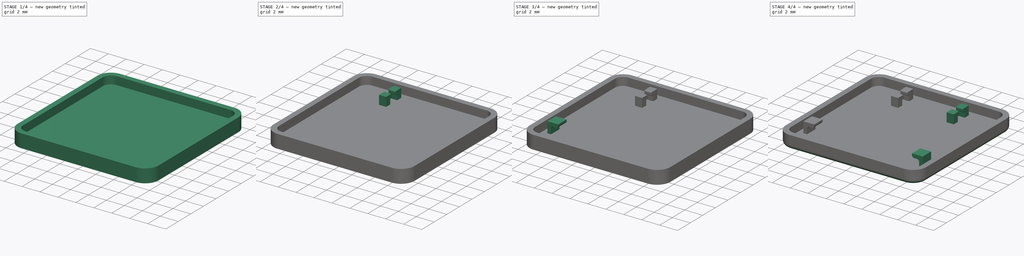
[diagram: build sequence overview — one tinted view per stage of 4, left to right]
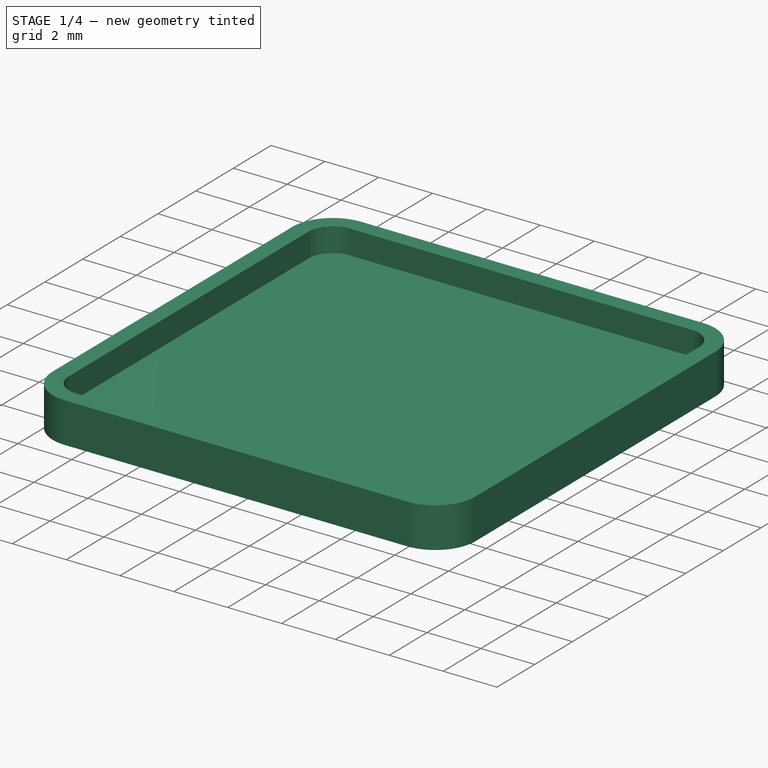
[diagram: stage 1 of 4 — iso view after this stage's code; geometry added in this stage tinted green]
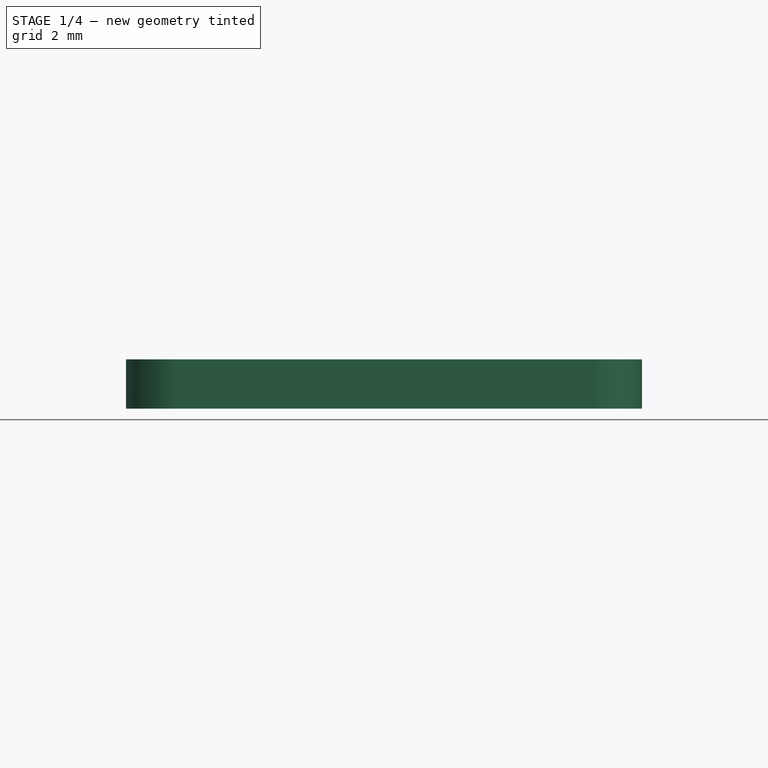
[diagram: stage 1 of 4 — front view after this stage's code; geometry added in this stage tinted green]
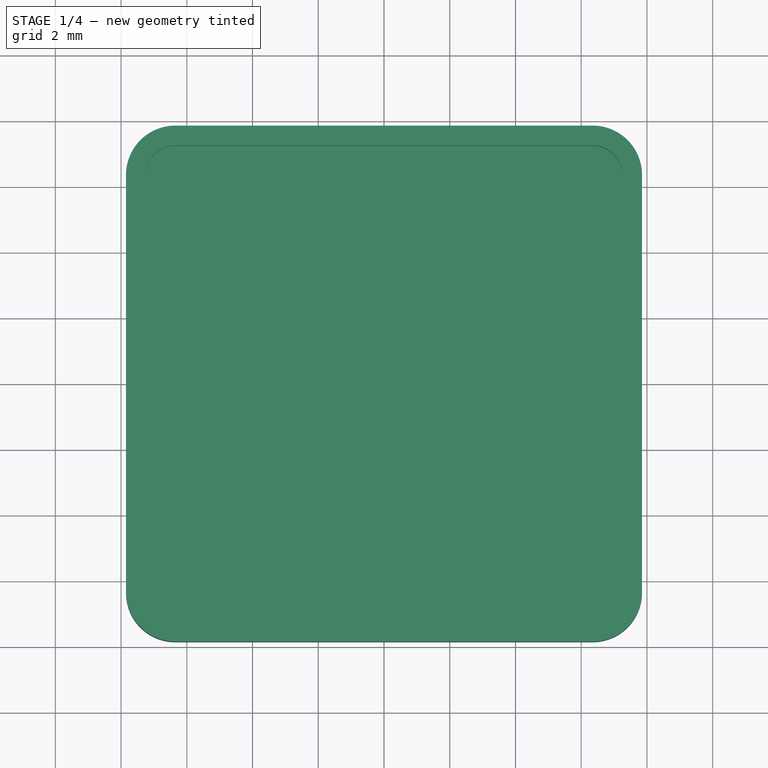
[diagram: stage 1 of 4 — top view after this stage's code; geometry added in this stage tinted green]
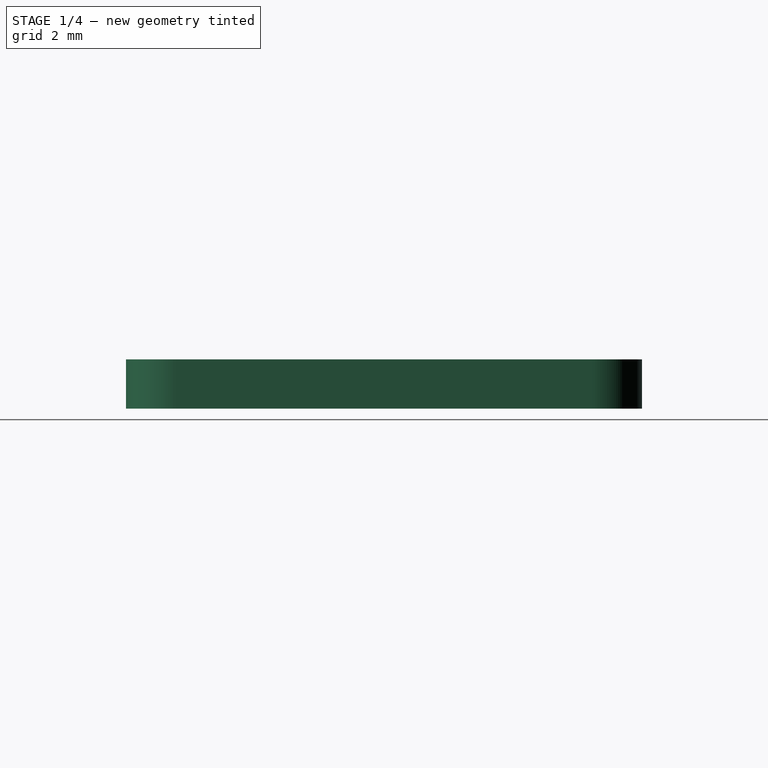
[diagram: stage 1 of 4 — right view after this stage's code; geometry added in this stage tinted green]
FCSTD DOCUMENT  (FreeCAD 0.21RUnknown)
Label: framework-laptop-keycap
License: All rights reserved
LicenseURL: https://en.wikipedia.org/wiki/All_rights_reserved
objects: Sketcher::SketchObject×5, PartDesign::Pad×4, PartDesign::Fillet×3, PartDesign::Thickness×1, PartDesign::Pocket×1, PartDesign::Mirrored×1, PartDesign::Body×1
note: 25 computed .brp shape members not serialized (recipe doc carries the construction recipe); baked Part::Feature solids carry a one-line shape summary decoded from their .brp

FEATURE [Sketcher::SketchObject] Sketch
  FullyConstrained = true
  MapMode = 5
  Support = -> [XY_Plane]
  sketch-geometry (10):
    g0: ArcOfCircle CenterX=-6.35 CenterY=6.35 CenterZ=0 NormalX=0 NormalY=0 NormalZ=1 AngleXU=0 Radius=1.5 StartAngle=1.5708 EndAngle=3.14159
    g1: LineSegment StartX=-6.35 StartY=7.85 StartZ=0 EndX=6.35 EndY=7.85 EndZ=0
    g2: ArcOfCircle CenterX=6.35 CenterY=6.35 CenterZ=0 NormalX=0 NormalY=0 NormalZ=1 AngleXU=0 Radius=1.5 StartAngle=3e-16 EndAngle=1.5708
    g3: LineSegment StartX=7.85 StartY=6.35 StartZ=0 EndX=7.85 EndY=-6.35 EndZ=0
    g4: ArcOfCircle CenterX=6.35 CenterY=-6.35 CenterZ=0 NormalX=0 NormalY=0 NormalZ=1 AngleXU=0 Radius=1.5 StartAngle=4.71239 EndAngle=6.28319
    g5: LineSegment StartX=6.35 StartY=-7.85 StartZ=0 EndX=-6.35 EndY=-7.85 EndZ=0
    g6: ArcOfCircle CenterX=-6.35 CenterY=-6.35 CenterZ=0 NormalX=0 NormalY=0 NormalZ=1 AngleXU=0 Radius=1.5 StartAngle=3.14159 EndAngle=4.71239
    g7: LineSegment StartX=-7.85 StartY=-6.35 StartZ=0 EndX=-7.85 EndY=6.35 EndZ=0
    g8: GeomPoint X=-7.85 Y=7.85 Z=0
    g9: GeomPoint X=7.85 Y=-7.85 Z=0
  constraints (23):
    c: Tangent(g0,g1) = 1.5708
    c: Tangent(g1,g2) = 1.5708
    c: Tangent(g2,g3) = 1.5708
    c: Tangent(g3,g4) = 1.5708
    c: Tangent(g4,g5) = 1.5708
    c: Tangent(g5,g6) = 1.5708
    c: Tangent(g6,g7) = 1.5708
    c: Tangent(g7,g0) = 1.5708
    c: Horizontal(g1)
    c: Horizontal(g5)
    c: Vertical(g3)
    c: Vertical(g7)
    c: Equal(g0,g2)
    c: Equal(g2,g4)
    c: Equal(g4,g6)
    c: PointOnObject(g8,g1)
    c: PointOnObject(g8,g7)
    c: PointOnObject(g9,g3)
    c: PointOnObject(g9,g5)
    c: Symmetric(g0,g3,g-1)
    c: DistanceX(g6,g3) = 15.7
    c: DistanceY(g4,g1) = 15.7
    c: Radius(g4) = 1.5
FEATURE [PartDesign::Pad] Pad
  Direction = (0,0,1)
  Length = 1.5
  Length2 = 10
  Profile = -> Sketch
  ReferenceAxis = -> Sketch [N_Axis]
  Type = 0
FEATURE [PartDesign::Thickness] Thickness
  Base = -> Pad [Face10]
  BaseFeature = -> Pad
  Intersection = false
  Join = 0
  Mode = 0
  Reversed = true
  SupportTransform = false
  Value = 0.6
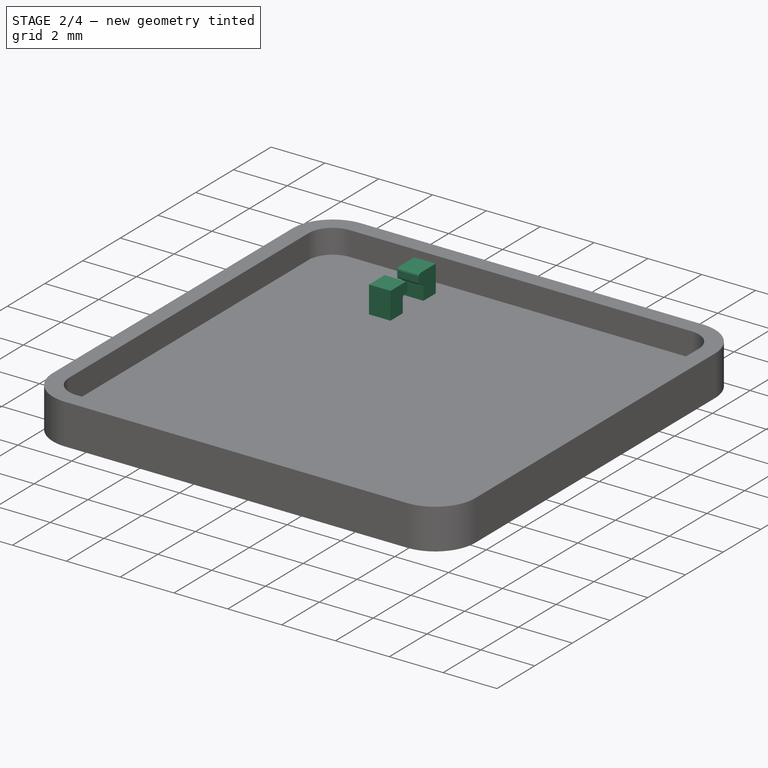
[diagram: stage 2 of 4 — iso view after this stage's code; geometry added in this stage tinted green]
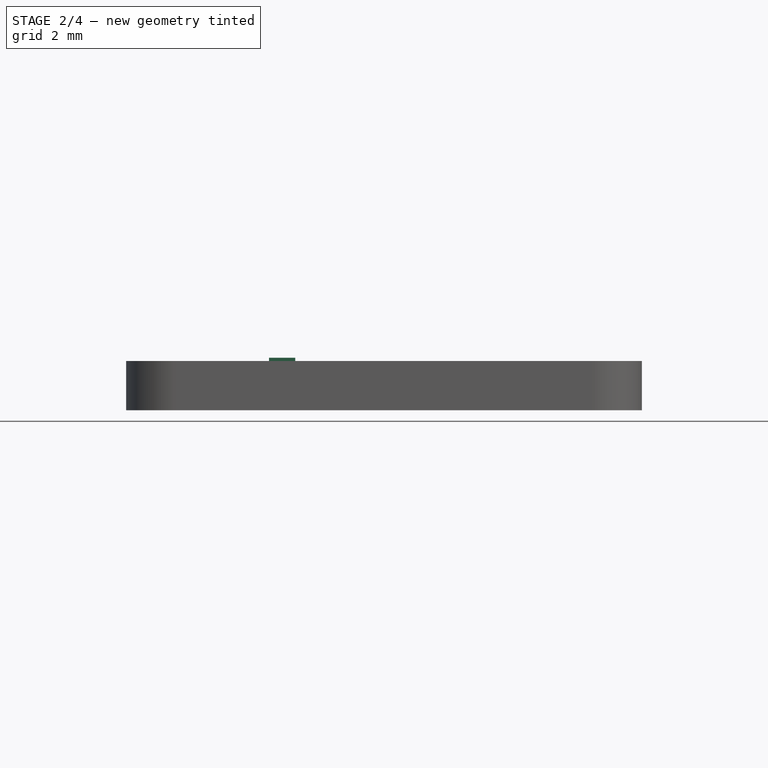
[diagram: stage 2 of 4 — front view after this stage's code; geometry added in this stage tinted green]
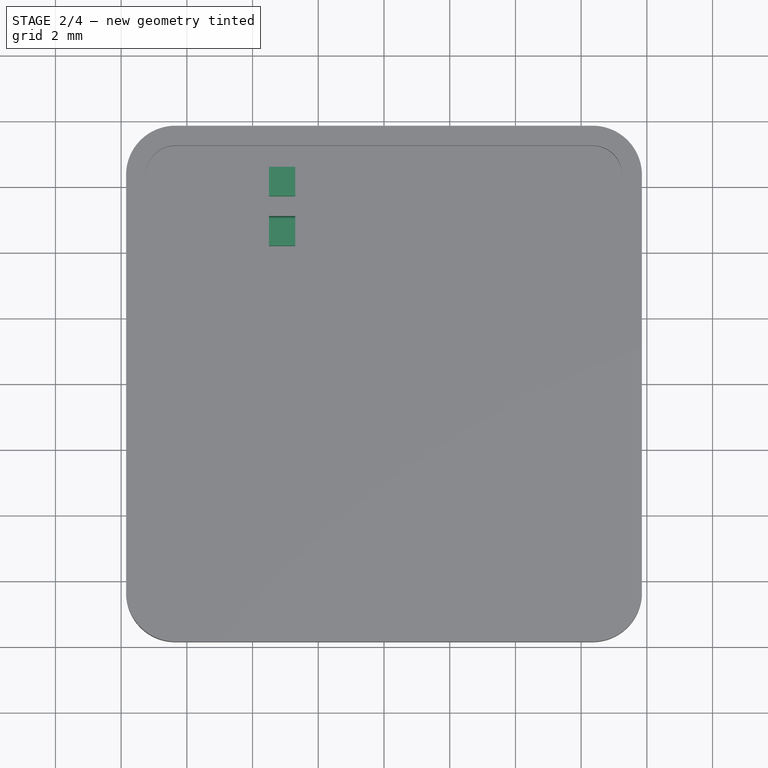
[diagram: stage 2 of 4 — top view after this stage's code; geometry added in this stage tinted green]
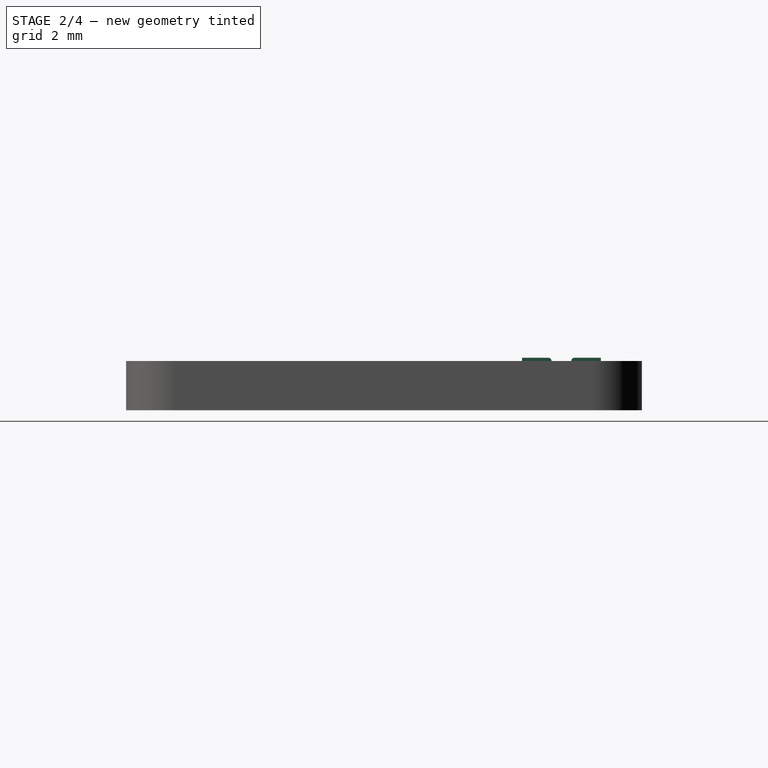
[diagram: stage 2 of 4 — right view after this stage's code; geometry added in this stage tinted green]
FEATURE [Sketcher::SketchObject] Sketch001  label="clips-sketch"
  ExternalGeometry = -> [Thickness]
  FullyConstrained = true
  MapMode = 5
  Placement = pos=(0,0,0.6) rot=(0,0,1;0rad)
  Support = -> [Thickness]
  sketch-geometry (8):
    g0: LineSegment StartX=-3.5 StartY=6.6 StartZ=0 EndX=-2.7 EndY=6.6 EndZ=0
    g1: LineSegment StartX=-2.7 StartY=6.6 StartZ=0 EndX=-2.7 EndY=5.7 EndZ=0
    g2: LineSegment StartX=-2.7 StartY=5.7 StartZ=0 EndX=-3.5 EndY=5.7 EndZ=0
    g3: LineSegment StartX=-3.5 StartY=5.7 StartZ=0 EndX=-3.5 EndY=6.6 EndZ=0
    g4: LineSegment StartX=-3.5 StartY=5.1 StartZ=0 EndX=-2.7 EndY=5.1 EndZ=0
    g5: LineSegment StartX=-2.7 StartY=5.1 StartZ=0 EndX=-2.7 EndY=4.2 EndZ=0
    g6: LineSegment StartX=-2.7 StartY=4.2 StartZ=0 EndX=-3.5 EndY=4.2 EndZ=0
    g7: LineSegment StartX=-3.5 StartY=4.2 StartZ=0 EndX=-3.5 EndY=5.1 EndZ=0
  constraints (24):
    c: Coincident(g0,g1)
    c: Coincident(g1,g2)
    c: Coincident(g2,g3)
    c: Coincident(g3,g0)
    c: Horizontal(g0)
    c: Horizontal(g2)
    c: Vertical(g1)
    c: Vertical(g3)
    c: DistanceY(g1,g1) = 0.9
    c: Coincident(g4,g5)
    c: Coincident(g5,g6)
    c: Coincident(g6,g7)
    c: Coincident(g7,g4)
    c: Horizontal(g4)
    c: Horizontal(g6)
    c: Vertical(g5)
    c: Vertical(g7)
    c: Equal(g1,g5)
    c: Equal(g2,g4)
    c: DistanceX(g0,g0) = 0.8
    c: Vertical(g2,g4)
    c: DistanceX(g-3,g5) = 5.15
    c: DistanceY(g4,g2) = 0.6
    c: DistanceY(g5,g-4) = 3.65
FEATURE [PartDesign::Pad] Pad001  label="clips"
  BaseFeature = -> Thickness
  Direction = (0,0,1)
  Length = 1
  Length2 = 10
  Profile = -> Sketch001
  ReferenceAxis = -> Sketch001 [N_Axis]
  Type = 0
FEATURE [Sketcher::SketchObject] Sketch002  label="guides-sketch"
  ExternalGeometry = -> [Pad001]
  FullyConstrained = true
  MapMode = 5
  Placement = pos=(0,0,0.6) rot=(0,0,1;0rad)
  Support = -> [Pad001]
  sketch-geometry (4):
    g0: LineSegment StartX=-6.65 StartY=-3.9 StartZ=0 EndX=-6.25 EndY=-3.9 EndZ=0
    g1: LineSegment StartX=-6.25 StartY=-3.9 StartZ=0 EndX=-6.25 EndY=-5.25 EndZ=0
    g2: LineSegment StartX=-6.25 StartY=-5.25 StartZ=0 EndX=-6.65 EndY=-5.25 EndZ=0
    g3: LineSegment StartX=-6.65 StartY=-5.25 StartZ=0 EndX=-6.65 EndY=-3.9 EndZ=0
  constraints (12):
    c: Coincident(g0,g1)
    c: Coincident(g1,g2)
    c: Coincident(g2,g3)
    c: Coincident(g3,g0)
    c: Horizontal(g0)
    c: Horizontal(g2)
    c: Vertical(g1)
    c: Vertical(g3)
    c: DistanceX(g-3,g0) = 1.2
    c: DistanceY(g1,g1) = 1.35
    c: DistanceY(g-4,g0) = 3.95
    c: DistanceX(g0,g0) = 0.4
FEATURE [Sketcher::SketchObject] Sketch003  label="clips-pocket-sketch"
  ExternalGeometry = -> [Pad001]
  FullyConstrained = true
  MapMode = 5
  Placement = pos=(-3.5,0,0) rot=(0.57735,-0.57735,-0.57735;2.0944rad)
  Support = -> [Pad001]
  sketch-geometry (8):
    g0: LineSegment StartX=-5.7 StartY=0.6 StartZ=0 EndX=-5.95 EndY=0.6 EndZ=0
    g1: LineSegment StartX=-5.95 StartY=0.6 StartZ=0 EndX=-5.95 EndY=1.2 EndZ=0
    g2: LineSegment StartX=-5.95 StartY=1.2 StartZ=0 EndX=-5.7 EndY=1.2 EndZ=0
    g3: LineSegment StartX=-5.7 StartY=1.2 StartZ=0 EndX=-5.7 EndY=0.6 EndZ=0
    g4: LineSegment StartX=-5.1 StartY=0.6 StartZ=0 EndX=-4.85 EndY=0.6 EndZ=0
    g5: LineSegment StartX=-4.85 StartY=0.6 StartZ=0 EndX=-4.85 EndY=1.2 EndZ=0
    g6: LineSegment StartX=-4.85 StartY=1.2 StartZ=0 EndX=-5.1 EndY=1.2 EndZ=0
    g7: LineSegment StartX=-5.1 StartY=1.2 StartZ=0 EndX=-5.1 EndY=0.6 EndZ=0
  constraints (22):
    c: Coincident(g0,g1)
    c: Coincident(g2,g3)
    c: Coincident(g3,g0)
    c: Horizontal(g0)
    c: Horizontal(g2)
    c: Vertical(g1)
    c: Vertical(g3)
    c: Coincident(g0,g-3)
    c: DistanceX(g0,g0) = 0.25
    c: DistanceY(g3,g3) = 0.6
    c: Coincident(g4,g5)
    c: Coincident(g6,g7)
    c: Coincident(g7,g4)
    c: Horizontal(g4)
    c: Horizontal(g6)
    c: Vertical(g5)
    c: Vertical(g7)
    c: Coincident(g4,g-4)
    c: Equal(g4,g0)
    c: Equal(g7,g3)
    c: Coincident(g2,g1)
    c: Coincident(g6,g5)
FEATURE [PartDesign::Pocket] Pocket  label="clips-pocket"
  BaseFeature = -> Pad001
  Direction = (1,0,0)
  Length = 0.8
  Length2 = 5
  Profile = -> Sketch003
  ReferenceAxis = -> Sketch003 [N_Axis]
  Type = 0
FEATURE [PartDesign::Fillet] Fillet  label="clips-fillet"
  Base = -> Pocket [Edge85,Edge86,Edge87,Edge90,Edge89,Edge88]
  BaseFeature = -> Pocket
  Radius = 0.1
  SupportTransform = false
  UseAllEdges = false
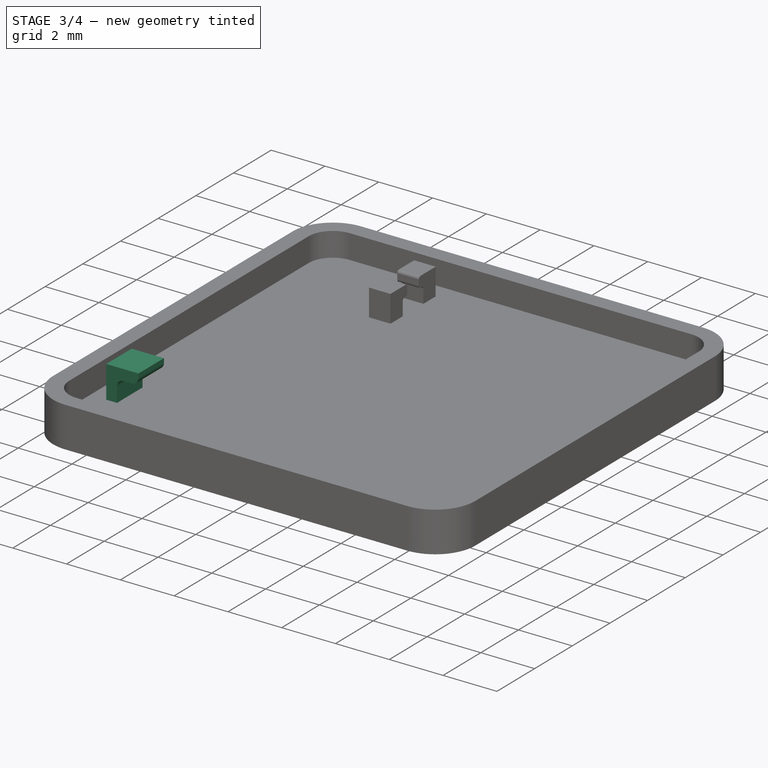
[diagram: stage 3 of 4 — iso view after this stage's code; geometry added in this stage tinted green]
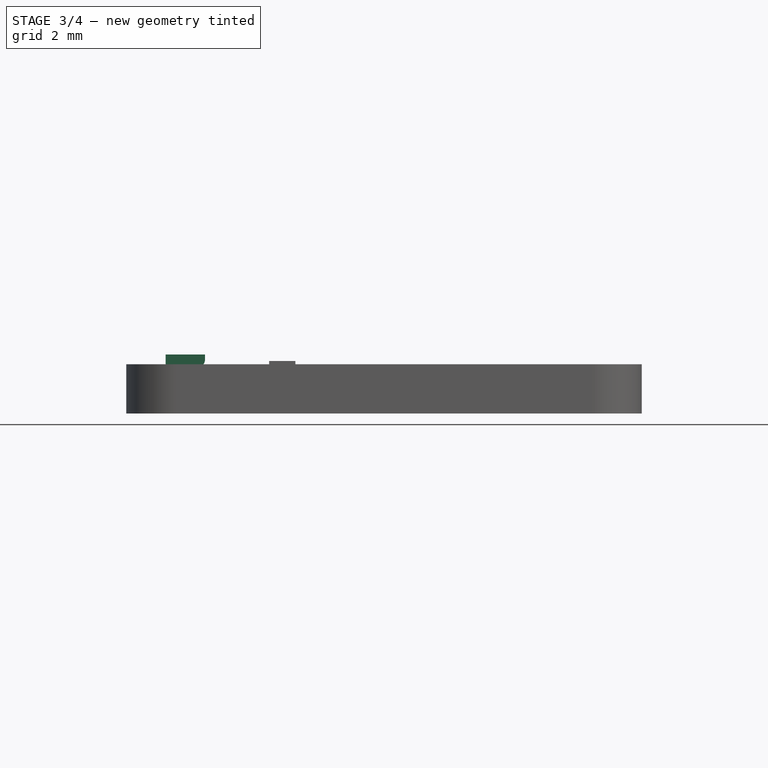
[diagram: stage 3 of 4 — front view after this stage's code; geometry added in this stage tinted green]
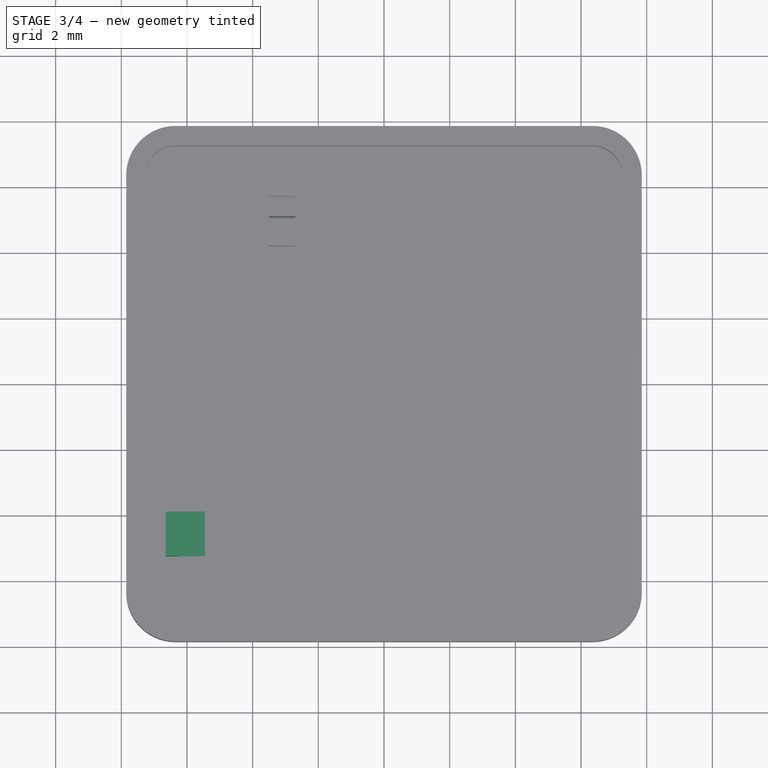
[diagram: stage 3 of 4 — top view after this stage's code; geometry added in this stage tinted green]
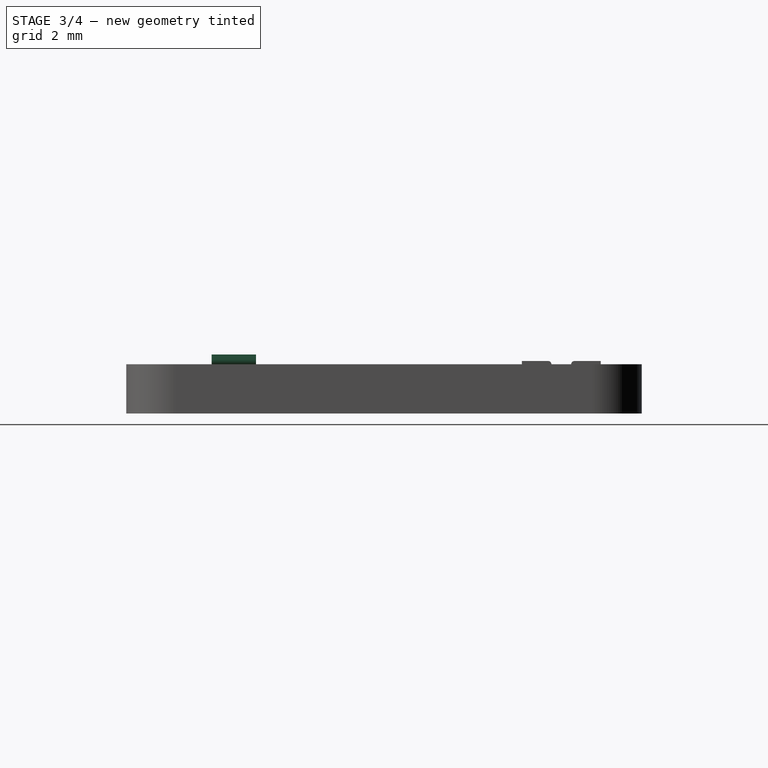
[diagram: stage 3 of 4 — right view after this stage's code; geometry added in this stage tinted green]
FEATURE [PartDesign::Pad] Pad002  label="guides"
  BaseFeature = -> Fillet
  Direction = (0,0,1)
  Length = 1.2
  Length2 = 10
  Profile = -> Sketch002
  ReferenceAxis = -> Sketch002 [N_Axis]
  Type = 0
FEATURE [Sketcher::SketchObject] Sketch004  label="guides-overhang-sketch"
  ExternalGeometry = -> [Pad002]
  FullyConstrained = true
  MapMode = 5
  Placement = pos=(-6.25,0,0) rot=(0.57735,0.57735,0.57735;2.0944rad)
  Support = -> [Pad002]
  sketch-geometry (4):
    g0: LineSegment StartX=-3.9 StartY=1.8 StartZ=0 EndX=-3.9 EndY=1.4 EndZ=0
    g1: LineSegment StartX=-3.9 StartY=1.4 StartZ=0 EndX=-5.25 EndY=1.4 EndZ=0
    g2: LineSegment StartX=-5.25 StartY=1.4 StartZ=0 EndX=-5.25 EndY=1.8 EndZ=0
    g3: LineSegment StartX=-5.25 StartY=1.8 StartZ=0 EndX=-3.9 EndY=1.8 EndZ=0
  constraints (10):
    c: Coincident(g0,g1)
    c: Coincident(g1,g2)
    c: Horizontal(g1)
    c: Vertical(g0)
    c: Vertical(g2)
    c: DistanceY(g0,g0) = 0.4
    c: Coincident(g2,g-3)
    c: Coincident(g-3,g0)
    c: Coincident(g3,g2)
    c: Coincident(g3,g0)
FEATURE [PartDesign::Pad] Pad003  label="guides-overhang"
  BaseFeature = -> Pad002
  Direction = (1,0,0)
  Length = 0.8
  Length2 = 10
  Profile = -> Sketch004
  ReferenceAxis = -> Sketch004 [N_Axis]
  Type = 0
FEATURE [PartDesign::Fillet] Fillet001  label="guides-fillet"
  Base = -> Pad003 [Edge71,Edge106]
  BaseFeature = -> Pad003
  Radius = 0.25
  SupportTransform = false
  UseAllEdges = false
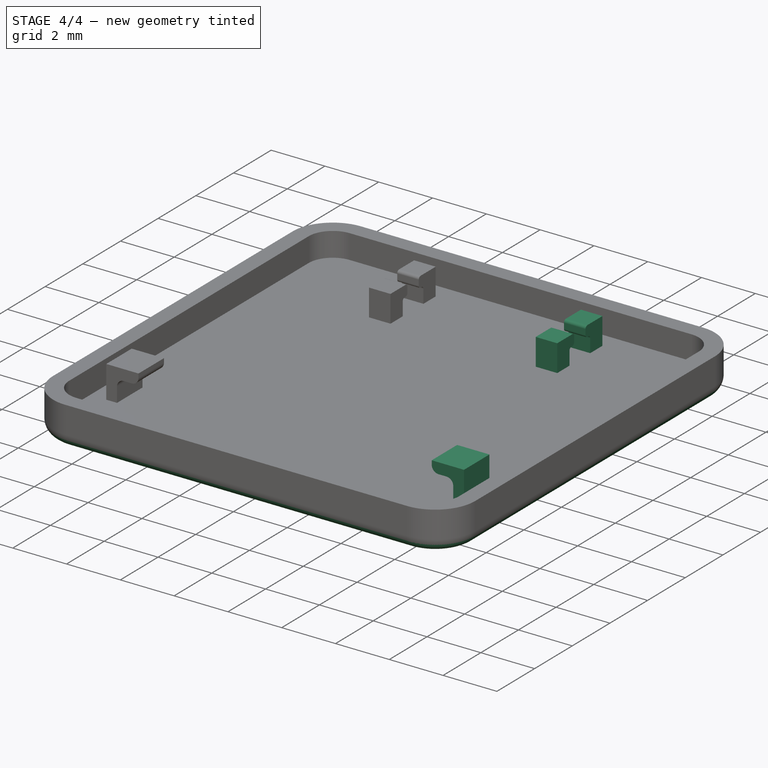
[diagram: stage 4 of 4 — iso view after this stage's code; geometry added in this stage tinted green]
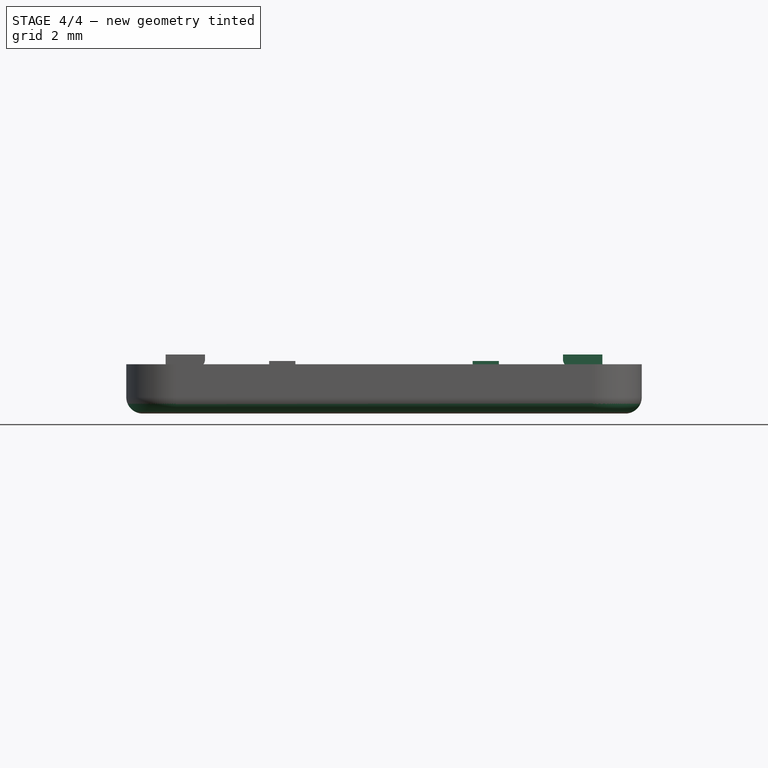
[diagram: stage 4 of 4 — front view after this stage's code; geometry added in this stage tinted green]
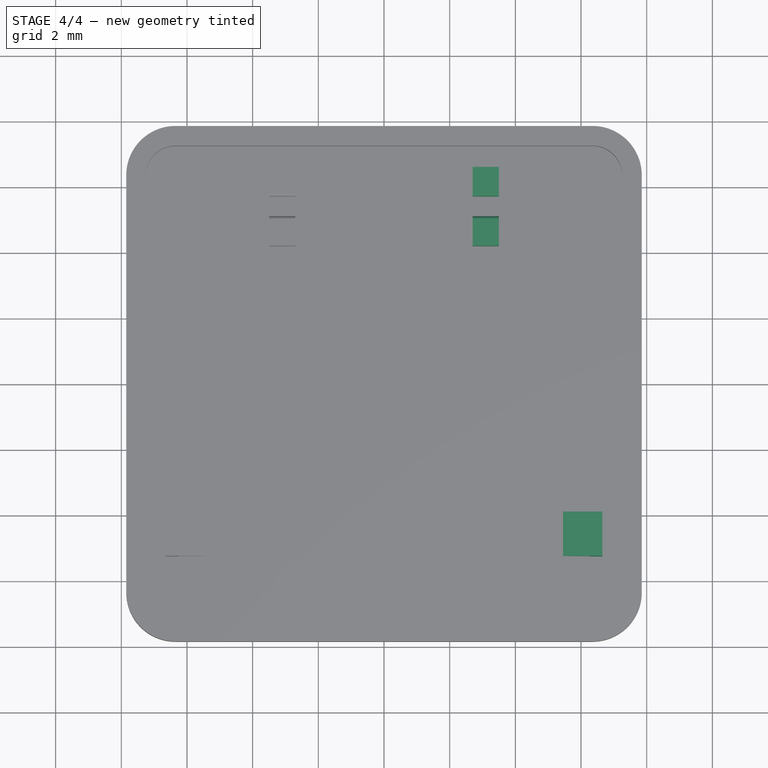
[diagram: stage 4 of 4 — top view after this stage's code; geometry added in this stage tinted green]
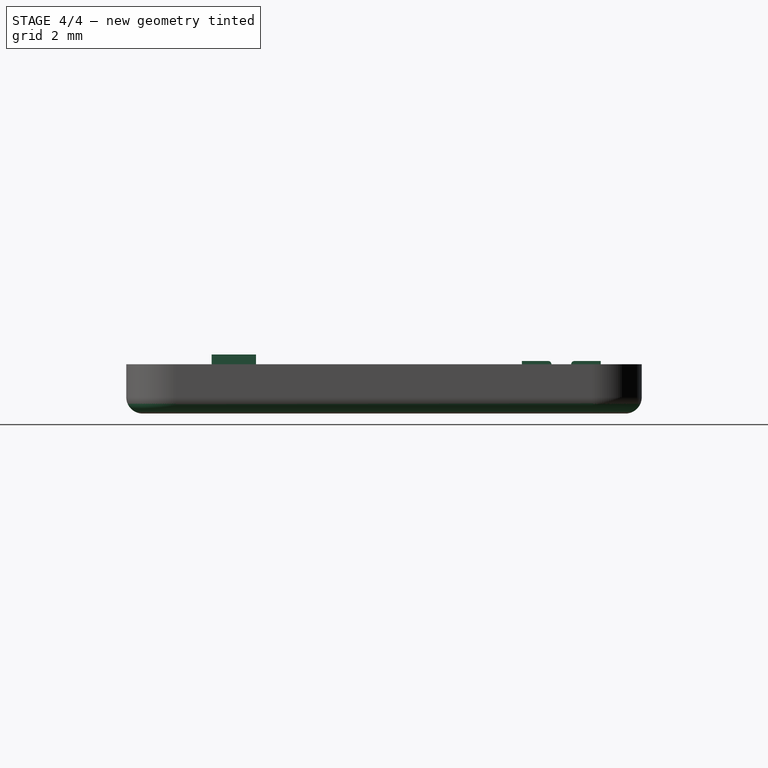
[diagram: stage 4 of 4 — right view after this stage's code; geometry added in this stage tinted green]
FEATURE [PartDesign::Mirrored] Mirrored
  BaseFeature = -> Fillet001
  MirrorPlane = -> Sketch002 [V_Axis]
  Originals = -> [Pad001,Pocket,Fillet,Pad002,Pad003,Fillet001]
FEATURE [PartDesign::Fillet] Fillet002  label="top-fillet"
  Base = -> Mirrored [Edge230]
  BaseFeature = -> Mirrored
  Radius = 0.5
  SupportTransform = false
  UseAllEdges = false
FEATURE [PartDesign::Body] Body
  Group = -> [Sketch,Pad,Thickness,Sketch001,Pad001,Sketch002,Sketch003,Pocket,Fillet,Pad002,Sketch004,Pad003,Fillet001,Mirrored,Fillet002]
  Origin = -> Origin
  Tip = -> Fillet002
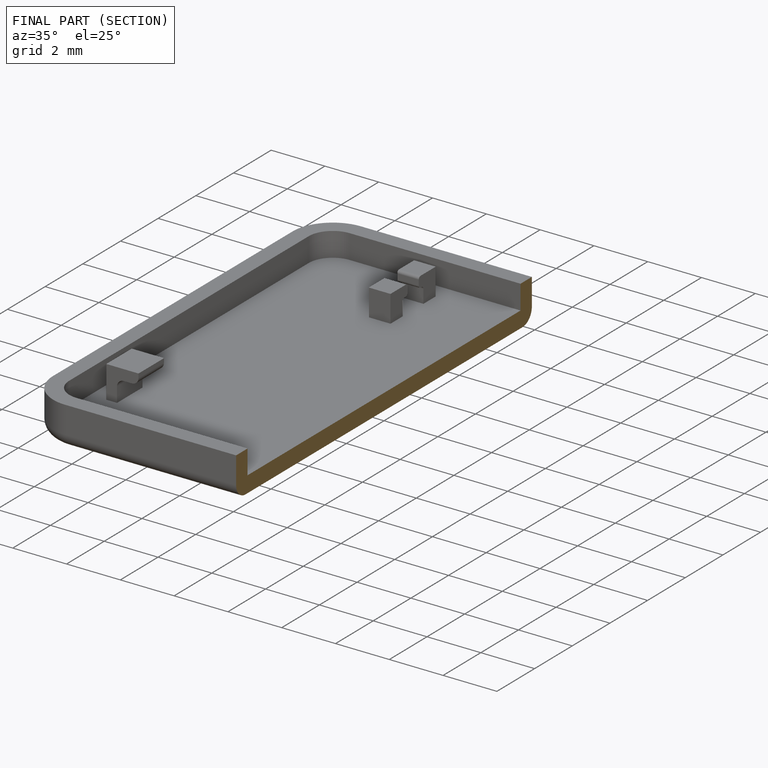
[diagram: finished part — half-section view (interior)]
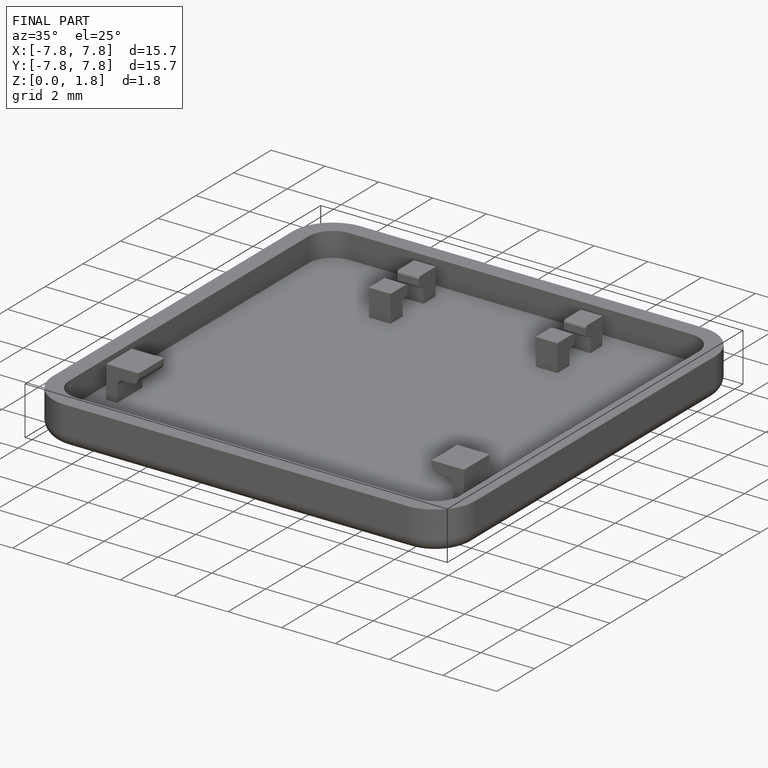
[diagram: finished part — iso view with bounding-box wireframe]
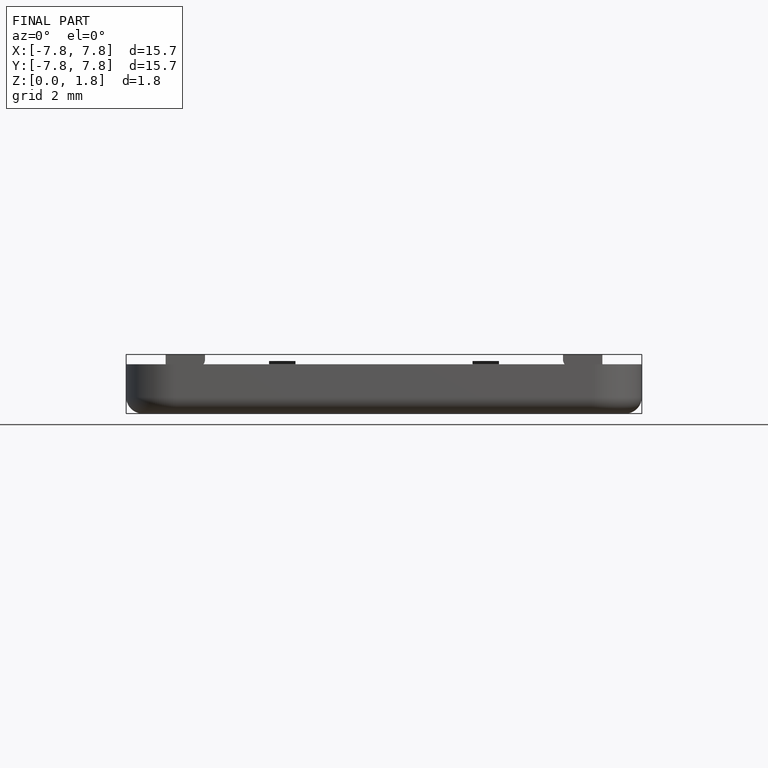
[diagram: finished part — front view with bounding-box wireframe]
